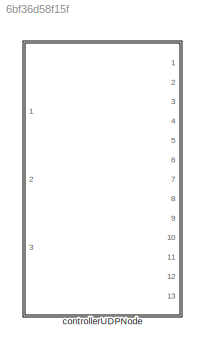
MODEL slx_6bf36d58f15f
KIND library
CONFIG AbsTol = auto
CONFIG EnableMultiTasking = off
CONFIG FixedStep = auto
CONFIG MaxStep = auto
CONFIG MinStep = auto
CONFIG RelTol = 1e-3
CONFIG SampleTimeConstraint = Unconstrained
CONFIG Solver = VariableStepAuto
CONFIG SolverName = VariableStepAuto
CONFIG StartTime = 0.0
CONFIG StopTime = 10.0
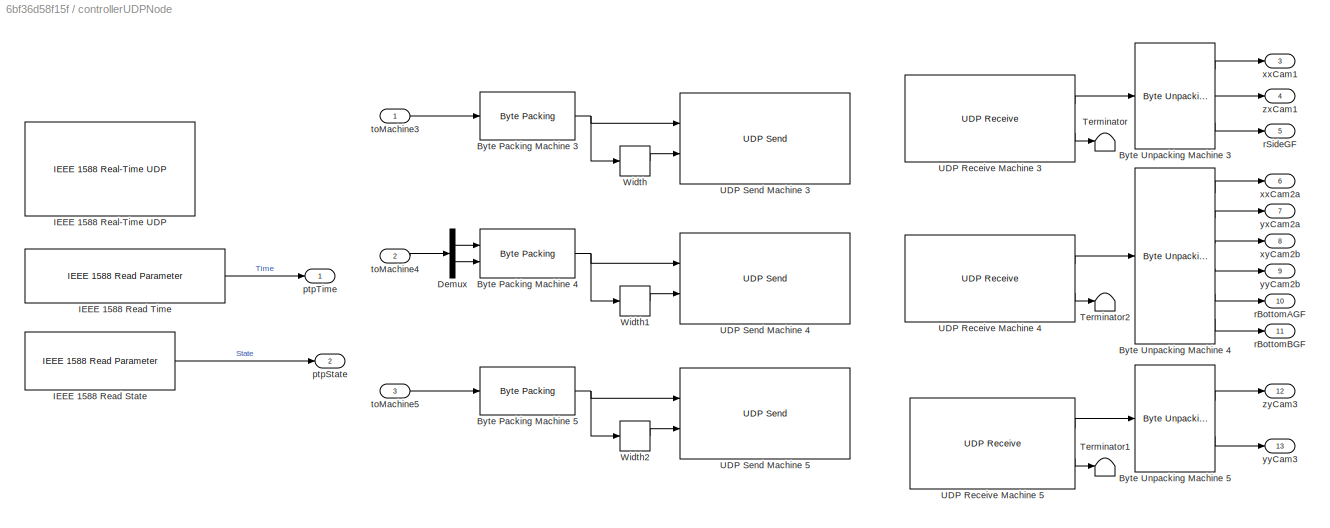
BLOCK [SubSystem] controllerUDPNode
  Ports = [3, 13]
  RequestExecContextInheritance = off
  TreatAsAtomicUnit = on
BLOCK [Reference] controllerUDPNode/Byte Packing Machine 3  REF=xpcutilitieslib/Byte Packing 
  Ports = [1, 1]
  SourceBlock = xpcutilitieslib/Byte Packing
  SourceProductBaseCode = XP
  SourceProductName = Simulink Real-Time
  SourceType = xpcbytepacking
BLOCK [Reference] controllerUDPNode/Byte Packing Machine 4  REF=xpcutilitieslib/Byte Packing 
  Ports = [2, 1]
  SourceBlock = xpcutilitieslib/Byte Packing
  SourceProductBaseCode = XP
  SourceProductName = Simulink Real-Time
  SourceType = xpcbytepacking
BLOCK [Reference] controllerUDPNode/Byte Packing Machine 5  REF=xpcutilitieslib/Byte Packing 
  Ports = [1, 1]
  SourceBlock = xpcutilitieslib/Byte Packing
  SourceProductBaseCode = XP
  SourceProductName = Simulink Real-Time
  SourceType = xpcbytepacking
BLOCK [Reference] controllerUDPNode/Byte Unpacking Machine 3   REF=xpcutilitieslib/Byte Unpacking 
  Ports = [1, 3]
  SourceBlock = xpcutilitieslib/Byte Unpacking
  SourceProductBaseCode = XP
  SourceProductName = Simulink Real-Time
  SourceType = xpcbytepacking
BLOCK [Reference] controllerUDPNode/Byte Unpacking Machine 4  REF=xpcutilitieslib/Byte Unpacking 
  Ports = [1, 6]
  SourceBlock = xpcutilitieslib/Byte Unpacking
  SourceProductBaseCode = XP
  SourceProductName = Simulink Real-Time
  SourceType = xpcbytepacking
BLOCK [Reference] controllerUDPNode/Byte Unpacking Machine 5  REF=xpcutilitieslib/Byte Unpacking 
  Ports = [1, 2]
  SourceBlock = xpcutilitieslib/Byte Unpacking
  SourceProductBaseCode = XP
  SourceProductName = Simulink Real-Time
  SourceType = xpcbytepacking
BLOCK [Demux] controllerUDPNode/Demux
  DisplayOption = bar
  Outputs = 2
  Ports = [1, 2]
BLOCK [Reference] controllerUDPNode/IEEE 1588 Read State  REF=ptplib/IEEE 1588
Read Parameter
  Ports = [0, 1]
  Priority = 1
  SourceBlock = ptplib/IEEE 1588\nRead Parameter
  SourceProductBaseCode = XP
  SourceProductName = Simulink Real-Time
  SourceType = IEEE_1588_read_param
BLOCK [Reference] controllerUDPNode/IEEE 1588 Read Time  REF=ptplib/IEEE 1588
Read Parameter
  Ports = [0, 1]
  Priority = 1
  SourceBlock = ptplib/IEEE 1588\nRead Parameter
  SourceProductBaseCode = XP
  SourceProductName = Simulink Real-Time
  SourceType = IEEE_1588_read_param
BLOCK [Reference] controllerUDPNode/IEEE 1588 Real-Time UDP  REF=ptplib/IEEE 1588 Real-Time UDP
  Ports = []
  Priority = 0
  SourceBlock = ptplib/IEEE 1588 Real-Time UDP
  SourceProductBaseCode = XP
  SourceProductName = Simulink Real-Time
  SourceType = IEEE1588_UDP
BLOCK [Terminator] controllerUDPNode/Terminator
BLOCK [Terminator] controllerUDPNode/Terminator1
BLOCK [Terminator] controllerUDPNode/Terminator2
BLOCK [Reference] controllerUDPNode/UDP Receive Machine 3  REF=xpcrtudplib/UDP Receive
  Ports = [0, 2]
  SourceBlock = xpcrtudplib/UDP Receive
  SourceProductBaseCode = XP
  SourceProductName = Simulink Real-Time
  SourceType = slrtudpreceive
BLOCK [Reference] controllerUDPNode/UDP Receive Machine 4  REF=xpcrtudplib/UDP Receive
  Ports = [0, 2]
  SourceBlock = xpcrtudplib/UDP Receive
  SourceProductBaseCode = XP
  SourceProductName = Simulink Real-Time
  SourceType = slrtudpreceive
BLOCK [Reference] controllerUDPNode/UDP Receive Machine 5  REF=xpcrtudplib/UDP Receive
  Ports = [0, 2]
  SourceBlock = xpcrtudplib/UDP Receive
  SourceProductBaseCode = XP
  SourceProductName = Simulink Real-Time
  SourceType = slrtudpreceive
BLOCK [Reference] controllerUDPNode/UDP Send Machine 3  REF=xpcrtudplib/UDP Send
  Ports = [2]
  SourceBlock = xpcrtudplib/UDP Send
  SourceProductBaseCode = XP
  SourceProductName = Simulink Real-Time
  SourceType = slrtudpsend
BLOCK [Reference] controllerUDPNode/UDP Send Machine 4  REF=xpcrtudplib/UDP Send
  Ports = [2]
  SourceBlock = xpcrtudplib/UDP Send
  SourceProductBaseCode = XP
  SourceProductName = Simulink Real-Time
  SourceType = slrtudpsend
BLOCK [Reference] controllerUDPNode/UDP Send Machine 5  REF=xpcrtudplib/UDP Send
  Ports = [2]
  SourceBlock = xpcrtudplib/UDP Send
  SourceProductBaseCode = XP
  SourceProductName = Simulink Real-Time
  SourceType = slrtudpsend
BLOCK [Width] controllerUDPNode/Width
BLOCK [Width] controllerUDPNode/Width1
BLOCK [Width] controllerUDPNode/Width2
BLOCK [Outport] controllerUDPNode/ptpState
  IconDisplay = Port number
  Port = 2
BLOCK [Outport] controllerUDPNode/ptpTime
  IconDisplay = Port number
BLOCK [Outport] controllerUDPNode/rBottomAGF
  IconDisplay = Port number
  Port = 10
BLOCK [Outport] controllerUDPNode/rBottomBGF
  IconDisplay = Port number
  Port = 11
BLOCK [Outport] controllerUDPNode/rSideGF
  IconDisplay = Port number
  Port = 5
BLOCK [Inport] controllerUDPNode/toMachine3
  IconDisplay = Port number
BLOCK [Inport] controllerUDPNode/toMachine4
  IconDisplay = Port number
  Port = 2
BLOCK [Inport] controllerUDPNode/toMachine5
  IconDisplay = Port number
  Port = 3
BLOCK [Outport] controllerUDPNode/xxCam1
  IconDisplay = Port number
  Port = 3
BLOCK [Outport] controllerUDPNode/xxCam2a
  IconDisplay = Port number
  Port = 6
BLOCK [Outport] controllerUDPNode/xyCam2b
  IconDisplay = Port number
  Port = 8
BLOCK [Outport] controllerUDPNode/yxCam2a
  IconDisplay = Port number
  Port = 7
BLOCK [Outport] controllerUDPNode/yyCam2b
  IconDisplay = Port number
  Port = 9
BLOCK [Outport] controllerUDPNode/yyCam3
  IconDisplay = Port number
  Port = 13
BLOCK [Outport] controllerUDPNode/zxCam1
  IconDisplay = Port number
  Port = 4
BLOCK [Outport] controllerUDPNode/zyCam3
  IconDisplay = Port number
  Port = 12
NET controllerUDPNode/Byte Packing Machine 3:1 -> controllerUDPNode/UDP Send Machine 3:1, controllerUDPNode/Width:1
NET controllerUDPNode/Byte Packing Machine 4:1 -> controllerUDPNode/UDP Send Machine 4:1, controllerUDPNode/Width1:1
NET controllerUDPNode/Byte Packing Machine 5:1 -> controllerUDPNode/UDP Send Machine 5:1, controllerUDPNode/Width2:1
LINE controllerUDPNode/Byte Unpacking Machine 3 :1 -> controllerUDPNode/xxCam1:1
LINE controllerUDPNode/Byte Unpacking Machine 3 :2 -> controllerUDPNode/zxCam1:1
LINE controllerUDPNode/Byte Unpacking Machine 3 :3 -> controllerUDPNode/rSideGF:1
LINE controllerUDPNode/Byte Unpacking Machine 4:1 -> controllerUDPNode/xxCam2a:1
LINE controllerUDPNode/Byte Unpacking Machine 4:2 -> controllerUDPNode/yxCam2a:1
LINE controllerUDPNode/Byte Unpacking Machine 4:3 -> controllerUDPNode/xyCam2b:1
LINE controllerUDPNode/Byte Unpacking Machine 4:4 -> controllerUDPNode/yyCam2b:1
LINE controllerUDPNode/Byte Unpacking Machine 4:5 -> controllerUDPNode/rBottomAGF:1
LINE controllerUDPNode/Byte Unpacking Machine 4:6 -> controllerUDPNode/rBottomBGF:1
LINE controllerUDPNode/Byte Unpacking Machine 5:1 -> controllerUDPNode/zyCam3:1
LINE controllerUDPNode/Byte Unpacking Machine 5:2 -> controllerUDPNode/yyCam3:1
LINE controllerUDPNode/Demux:1 -> controllerUDPNode/Byte Packing Machine 4:1
LINE controllerUDPNode/Demux:2 -> controllerUDPNode/Byte Packing Machine 4:2
LINE controllerUDPNode/IEEE 1588 Read State:1 -> controllerUDPNode/ptpState:1
LINE controllerUDPNode/IEEE 1588 Read Time:1 -> controllerUDPNode/ptpTime:1
LINE controllerUDPNode/UDP Receive Machine 3:1 -> controllerUDPNode/Byte Unpacking Machine 3 :1
LINE controllerUDPNode/UDP Receive Machine 3:2 -> controllerUDPNode/Terminator:1
LINE controllerUDPNode/UDP Receive Machine 4:1 -> controllerUDPNode/Byte Unpacking Machine 4:1
LINE controllerUDPNode/UDP Receive Machine 4:2 -> controllerUDPNode/Terminator2:1
LINE controllerUDPNode/UDP Receive Machine 5:1 -> controllerUDPNode/Byte Unpacking Machine 5:1
LINE controllerUDPNode/UDP Receive Machine 5:2 -> controllerUDPNode/Terminator1:1
LINE controllerUDPNode/Width1:1 -> controllerUDPNode/UDP Send Machine 4:2
LINE controllerUDPNode/Width2:1 -> controllerUDPNode/UDP Send Machine 5:2
LINE controllerUDPNode/Width:1 -> controllerUDPNode/UDP Send Machine 3:2
LINE controllerUDPNode/toMachine3:1 -> controllerUDPNode/Byte Packing Machine 3:1
LINE controllerUDPNode/toMachine4:1 -> controllerUDPNode/Demux:1
LINE controllerUDPNode/toMachine5:1 -> controllerUDPNode/Byte Packing Machine 5:1
note: NET lines group one-source signal fan-out (src -> all destinations, sorted); 1:1 wires keep LINE
